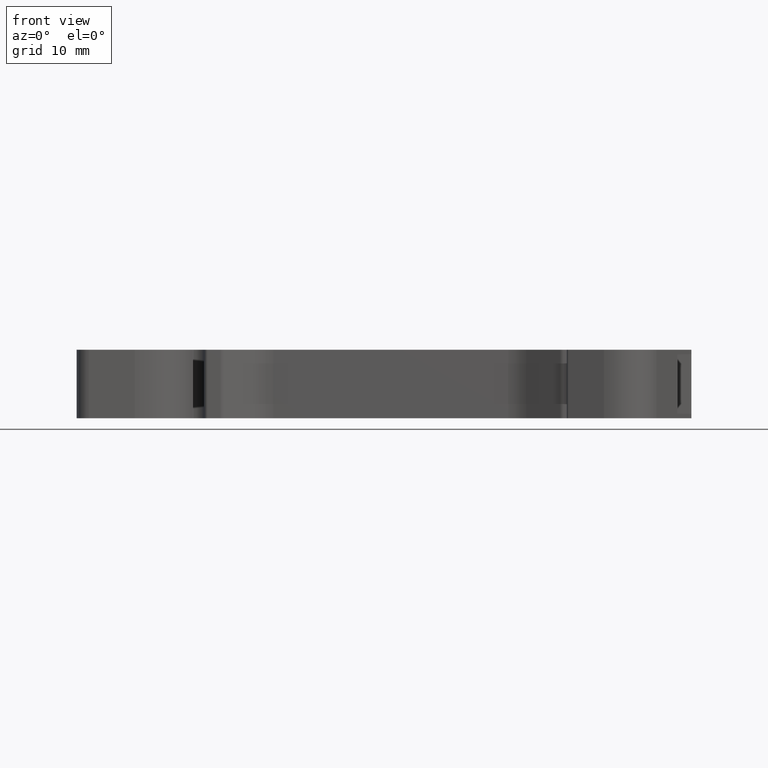
[diagram: clean part render]
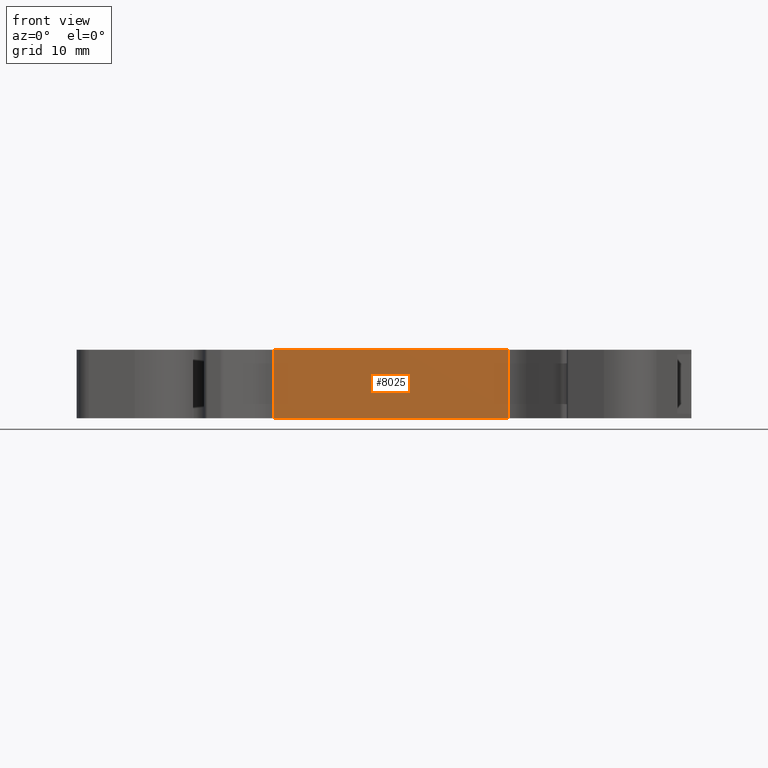
[diagram: same view with one face highlighted and labeled with its STEP entity id]
A machine part, front view. The second image highlights one B-rep face of the part: STEP entity #8025.
In plain terms, the highlighted planar face has unit normal (0, 1, 0).
Its self-contained STEP definition (entity closure, byte-faithful):
#264 = LINE ( 'NONE', #10709, #1025 ) ;
#448 = LINE ( 'NONE', #9193, #4671 ) ;
#526 = VECTOR ( 'NONE', #8183, 1000.000000000000000 ) ;
#736 = VERTEX_POINT ( 'NONE', #10563 ) ;
#1025 = VECTOR ( 'NONE', #1130, 1000.000000000000000 ) ;
#1130 = DIRECTION ( 'NONE',  ( 1.000000000000000000, -6.276837520970889241E-14, 0.0000000000000000000 ) ) ;
#1228 = EDGE_CURVE ( 'NONE', #1475, #6802, #264, .T. ) ;
#1475 = VERTEX_POINT ( 'NONE', #6035 ) ;
#1845 = AXIS2_PLACEMENT_3D ( 'NONE', #7230, #6204, #10527 ) ;
#1894 = VERTEX_POINT ( 'NONE', #5283 ) ;
#2390 = EDGE_CURVE ( 'NONE', #1894, #736, #448, .T. ) ;
#2434 = EDGE_CURVE ( 'NONE', #1475, #736, #7435, .T. ) ;
#2890 = FACE_OUTER_BOUND ( 'NONE', #9988, .T. ) ;
#4466 = EDGE_CURVE ( 'NONE', #1894, #6802, #10793, .T. ) ;
#4642 = CARTESIAN_POINT ( 'NONE',  ( 1925.005411333645043, 495.2674875439330435, -8.900000000000000355 ) ) ;
#4671 = VECTOR ( 'NONE', #5604, 1000.000000000000000 ) ;
#4860 = DIRECTION ( 'NONE',  ( 0.0000000000000000000, 0.0000000000000000000, -1.000000000000000000 ) ) ;
#5283 = CARTESIAN_POINT ( 'NONE',  ( 1944.885700203629995, 495.2674875439330435, -14.69999999999999929 ) ) ;
#5456 = PLANE ( 'NONE',  #1845 ) ;
#5462 = CARTESIAN_POINT ( 'NONE',  ( 1944.885700203629995, 495.2674875439330435, -8.900000000000000355 ) ) ;
#5604 = DIRECTION ( 'NONE',  ( -1.000000000000000000, 3.138418760485444621E-14, 0.0000000000000000000 ) ) ;
#6035 = CARTESIAN_POINT ( 'NONE',  ( 1925.005411333645043, 495.2674875439330435, -8.900000000000000355 ) ) ;
#6204 = DIRECTION ( 'NONE',  ( 5.927828052755870073E-15, 1.000000000000000000, 0.0000000000000000000 ) ) ;
#6802 = VERTEX_POINT ( 'NONE', #5462 ) ;
#7230 = CARTESIAN_POINT ( 'NONE',  ( 2.935860506280915131E-12, 495.2674875439449806, -8.900000000000000355 ) ) ;
#7435 = LINE ( 'NONE', #4642, #11223 ) ;
#7547 = ORIENTED_EDGE ( 'NONE', *, *, #2390, .F. ) ;
#8025 = ADVANCED_FACE ( 'NONE', ( #2890 ), #5456, .F. ) ;
#8183 = DIRECTION ( 'NONE',  ( 0.0000000000000000000, 0.0000000000000000000, 1.000000000000000000 ) ) ;
#8949 = ORIENTED_EDGE ( 'NONE', *, *, #1228, .F. ) ;
#8988 = ORIENTED_EDGE ( 'NONE', *, *, #2434, .T. ) ;
#9193 = CARTESIAN_POINT ( 'NONE',  ( 1925.005411333645043, 495.2674875439330435, -14.69999999999999929 ) ) ;
#9200 = CARTESIAN_POINT ( 'NONE',  ( 1944.885700203629995, 495.2674875439330435, -54.16595289389319845 ) ) ;
#9988 = EDGE_LOOP ( 'NONE', ( #8949, #8988, #7547, #10123 ) ) ;
#10123 = ORIENTED_EDGE ( 'NONE', *, *, #4466, .T. ) ;
#10527 = DIRECTION ( 'NONE',  ( -1.000000000000000000, 5.927828052755870073E-15, 0.0000000000000000000 ) ) ;
#10563 = CARTESIAN_POINT ( 'NONE',  ( 1925.005411333645043, 495.2674875439330435, -14.69999999999999929 ) ) ;
#10709 = CARTESIAN_POINT ( 'NONE',  ( 3.108713548733505398E-11, 495.2674875440540063, -8.900000000000000355 ) ) ;
#10793 = LINE ( 'NONE', #9200, #526 ) ;
#11223 = VECTOR ( 'NONE', #4860, 1000.000000000000000 ) ;